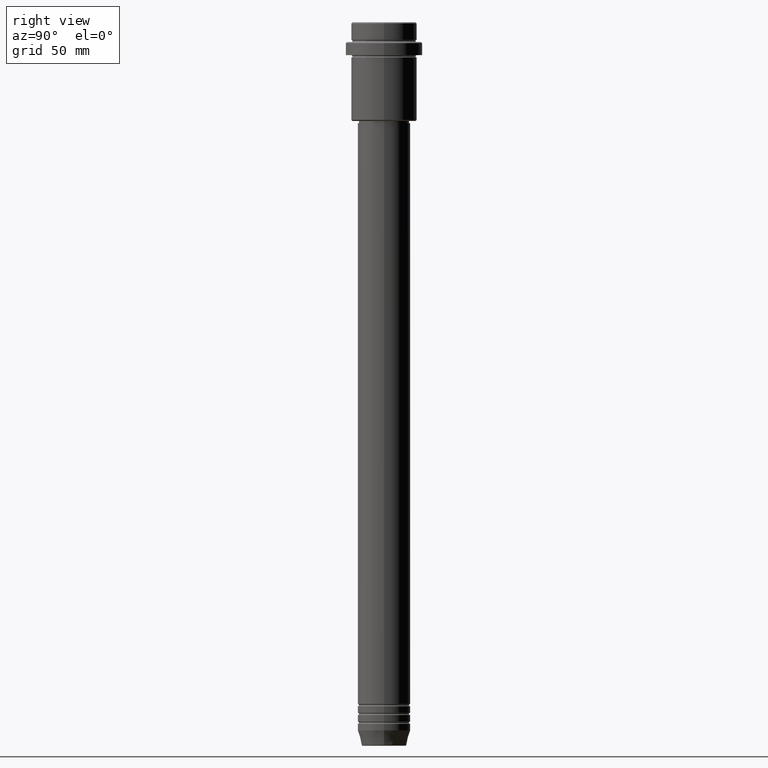
[diagram: clean part render]
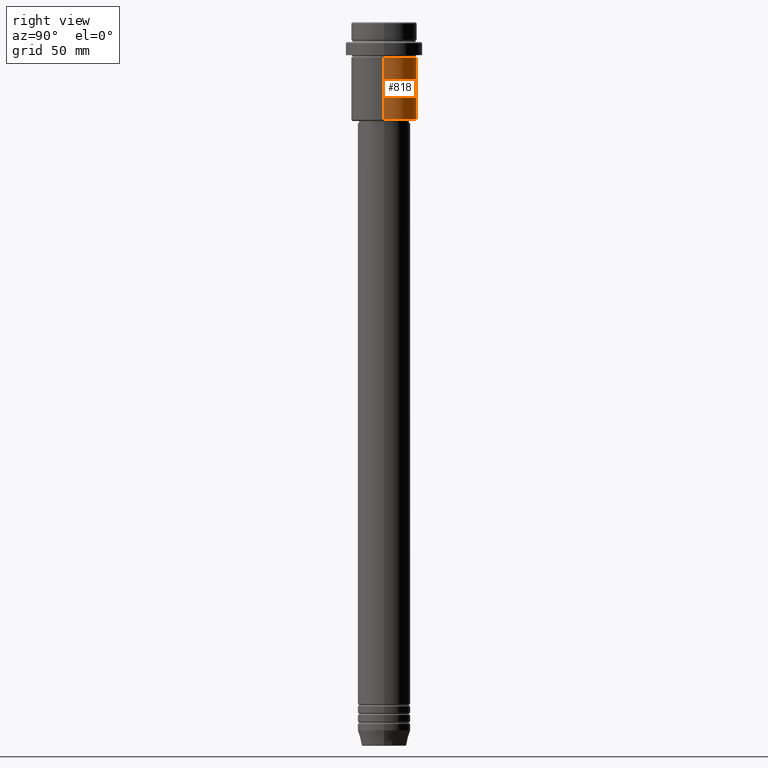
[diagram: same view with one face highlighted and labeled with its STEP entity id]
A machine part, right view. The second image highlights one B-rep face of the part: STEP entity #818.
In plain terms, the highlighted cylindrical surface (edge-blend (fillet) strip) has radius 15 mm, axis along (-0, -0, 1).
Its self-contained STEP definition (entity closure, byte-faithful):
#17 = CARTESIAN_POINT ( 'NONE',  ( -15.00000000000000000, 1.836970198721029589E-15, -44.49999999999994316 ) ) ;
#106 = VECTOR ( 'NONE', #1147, 1000.000000000000000 ) ;
#115 = EDGE_CURVE ( 'NONE', #666, #202, #344, .T. ) ;
#141 = DIRECTION ( 'NONE',  ( -0.000000000000000000, -0.000000000000000000, 1.000000000000000000 ) ) ;
#200 = CARTESIAN_POINT ( 'NONE',  ( -15.00000000000000355, 1.836970198721029983E-15, -16.00000000000000000 ) ) ;
#202 = VERTEX_POINT ( 'NONE', #200 ) ;
#323 = CARTESIAN_POINT ( 'NONE',  ( 15.00000000000000178, 0.000000000000000000, -16.00000000000000000 ) ) ;
#344 = CIRCLE ( 'NONE', #714, 15.00000000000000178 ) ;
#362 = DIRECTION ( 'NONE',  ( 1.000000000000000000, 0.000000000000000000, 0.000000000000000000 ) ) ;
#384 = DIRECTION ( 'NONE',  ( -0.000000000000000000, -0.000000000000000000, 1.000000000000000000 ) ) ;
#404 = VECTOR ( 'NONE', #384, 1000.000000000000000 ) ;
#481 = CARTESIAN_POINT ( 'NONE',  ( 0.000000000000000000, 0.000000000000000000, -44.49999999999994316 ) ) ;
#494 = DIRECTION ( 'NONE',  ( -1.000000000000000000, 0.000000000000000000, 0.000000000000000000 ) ) ;
#506 = VERTEX_POINT ( 'NONE', #888 ) ;
#546 = ORIENTED_EDGE ( 'NONE', *, *, #115, .F. ) ;
#588 = CARTESIAN_POINT ( 'NONE',  ( -15.00000000000000000, 1.836970198721029589E-15, 0.000000000000000000 ) ) ;
#605 = CIRCLE ( 'NONE', #718, 15.00000000000000000 ) ;
#651 = ORIENTED_EDGE ( 'NONE', *, *, #1007, .F. ) ;
#666 = VERTEX_POINT ( 'NONE', #323 ) ;
#698 = LINE ( 'NONE', #913, #106 ) ;
#714 = AXIS2_PLACEMENT_3D ( 'NONE', #1125, #141, #362 ) ;
#718 = AXIS2_PLACEMENT_3D ( 'NONE', #481, #1056, #494 ) ;
#734 = CYLINDRICAL_SURFACE ( 'NONE', #1088, 15.00000000000000000 ) ;
#742 = EDGE_CURVE ( 'NONE', #506, #919, #605, .T. ) ;
#744 = DIRECTION ( 'NONE',  ( -0.000000000000000000, -0.000000000000000000, 1.000000000000000000 ) ) ;
#818 = ADVANCED_FACE ( 'NONE', ( #1282 ), #734, .T. ) ;
#888 = CARTESIAN_POINT ( 'NONE',  ( 15.00000000000000000, 0.000000000000000000, -44.49999999999994316 ) ) ;
#913 = CARTESIAN_POINT ( 'NONE',  ( 15.00000000000000000, 0.000000000000000000, 0.000000000000000000 ) ) ;
#919 = VERTEX_POINT ( 'NONE', #17 ) ;
#981 = DIRECTION ( 'NONE',  ( 1.000000000000000000, 0.000000000000000000, 0.000000000000000000 ) ) ;
#1007 = EDGE_CURVE ( 'NONE', #506, #666, #698, .T. ) ;
#1029 = EDGE_CURVE ( 'NONE', #919, #202, #1276, .T. ) ;
#1056 = DIRECTION ( 'NONE',  ( -0.000000000000000000, -0.000000000000000000, 1.000000000000000000 ) ) ;
#1088 = AXIS2_PLACEMENT_3D ( 'NONE', #1295, #744, #981 ) ;
#1125 = CARTESIAN_POINT ( 'NONE',  ( 0.000000000000000000, 0.000000000000000000, -16.00000000000000000 ) ) ;
#1147 = DIRECTION ( 'NONE',  ( -0.000000000000000000, -0.000000000000000000, 1.000000000000000000 ) ) ;
#1154 = ORIENTED_EDGE ( 'NONE', *, *, #742, .T. ) ;
#1254 = EDGE_LOOP ( 'NONE', ( #1154, #1284, #546, #651 ) ) ;
#1276 = LINE ( 'NONE', #588, #404 ) ;
#1282 = FACE_OUTER_BOUND ( 'NONE', #1254, .T. ) ;
#1284 = ORIENTED_EDGE ( 'NONE', *, *, #1029, .T. ) ;
#1295 = CARTESIAN_POINT ( 'NONE',  ( 0.000000000000000000, 0.000000000000000000, 0.000000000000000000 ) ) ;